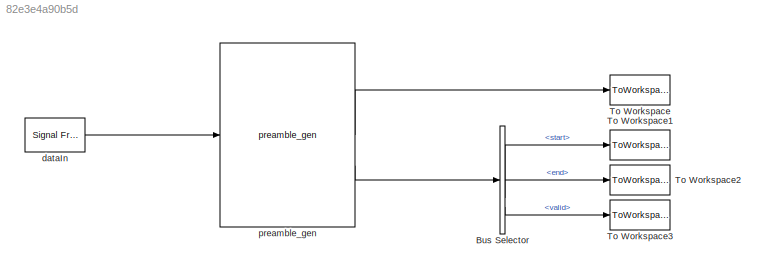
MODEL slx_82e3e4a90b5d
KIND model
CONFIG AbsTol = auto
CONFIG EnableMultiTasking = off
CONFIG FixedStep = auto
CONFIG MaxStep = auto
CONFIG MinStep = auto
CONFIG RelTol = 1e-3
CONFIG SampleTimeConstraint = Unconstrained
CONFIG SolverName = FixedStepDiscrete
CONFIG StartTime = 0.0
CONFIG StopTime = stopTime
BLOCK [BusSelector] Bus Selector
  OutputSignals = start,end,valid
BLOCK [ToWorkspace] To Workspace
  MaxDataPoints = inf
  SampleTime = 1/CONST.fs
  Save2DSignal = 2-D array (concatenate along first dimension)
  VariableName = dataOut
BLOCK [ToWorkspace] To Workspace1
  MaxDataPoints = inf
  SampleTime = 1/CONST.fs
  Save2DSignal = 2-D array (concatenate along first dimension)
  VariableName = startOut
BLOCK [ToWorkspace] To Workspace2
  MaxDataPoints = inf
  SampleTime = 1/CONST.fs
  Save2DSignal = 2-D array (concatenate along first dimension)
  VariableName = endOut
BLOCK [ToWorkspace] To Workspace3
  MaxDataPoints = inf
  SampleTime = 1/CONST.fs
  Save2DSignal = 2-D array (concatenate along first dimension)
  VariableName = validOut
BLOCK [Reference] dataIn  REF=dspsrcs4/Signal From
Workspace
  SourceBlock = dspsrcs4/Signal From\nWorkspace
  SourceType = Signal From Workspace
BLOCK [Reference] preamble_gen  REF=HDL_ieee_8021513/preamble_gen
  SourceBlock = HDL_ieee_8021513/preamble_gen
  SourceProductName = HDL IEEE 8021513
  SourceType = SubSystem
LINE Bus Selector:1 -> To Workspace1:1
LINE Bus Selector:2 -> To Workspace2:1
LINE Bus Selector:3 -> To Workspace3:1
LINE dataIn:1 -> preamble_gen:1
LINE preamble_gen:1 -> To Workspace:1
LINE preamble_gen:2 -> Bus Selector:1
